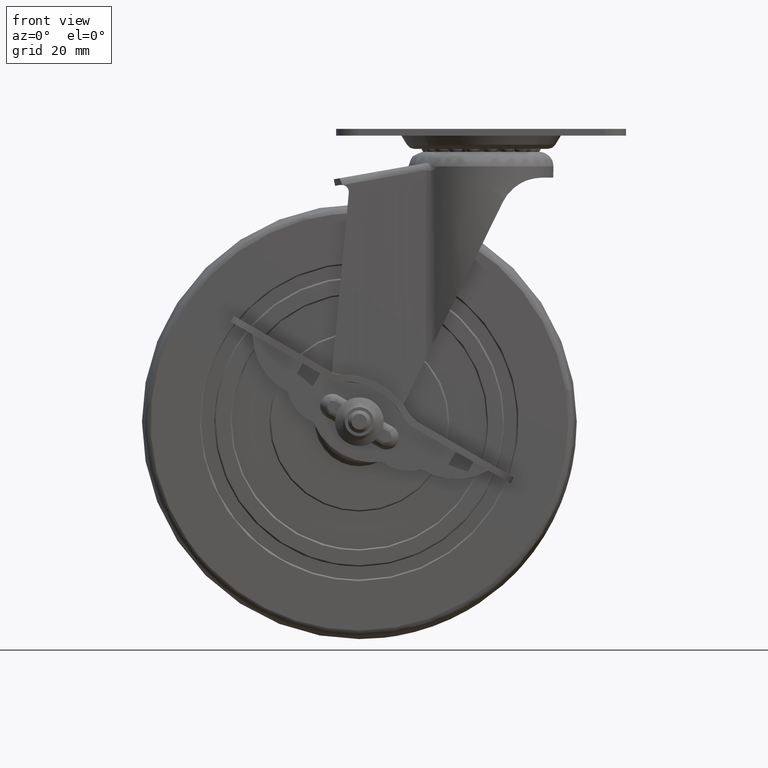
[diagram: clean part render]
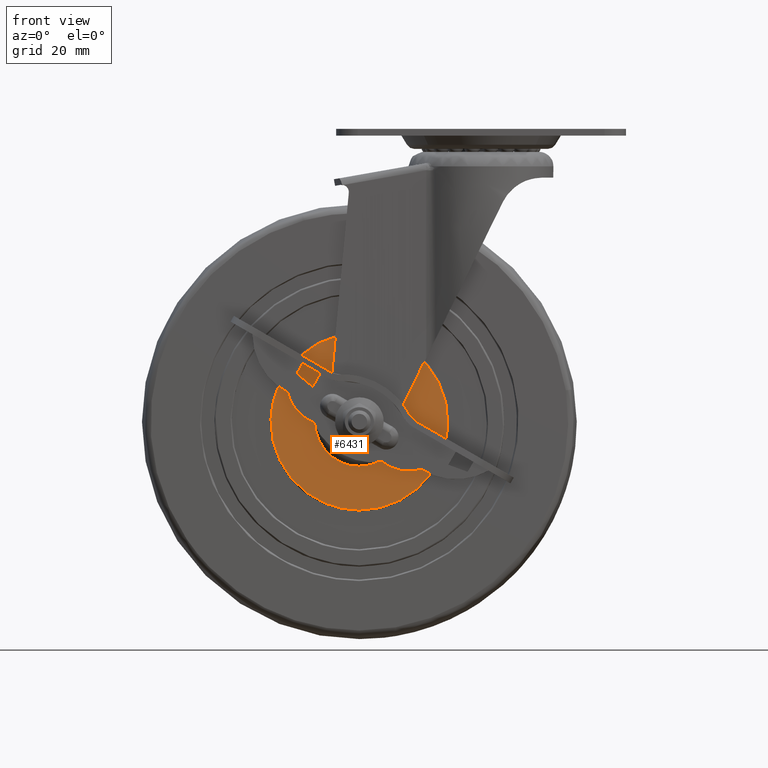
[diagram: same view with one face highlighted and labeled with its STEP entity id]
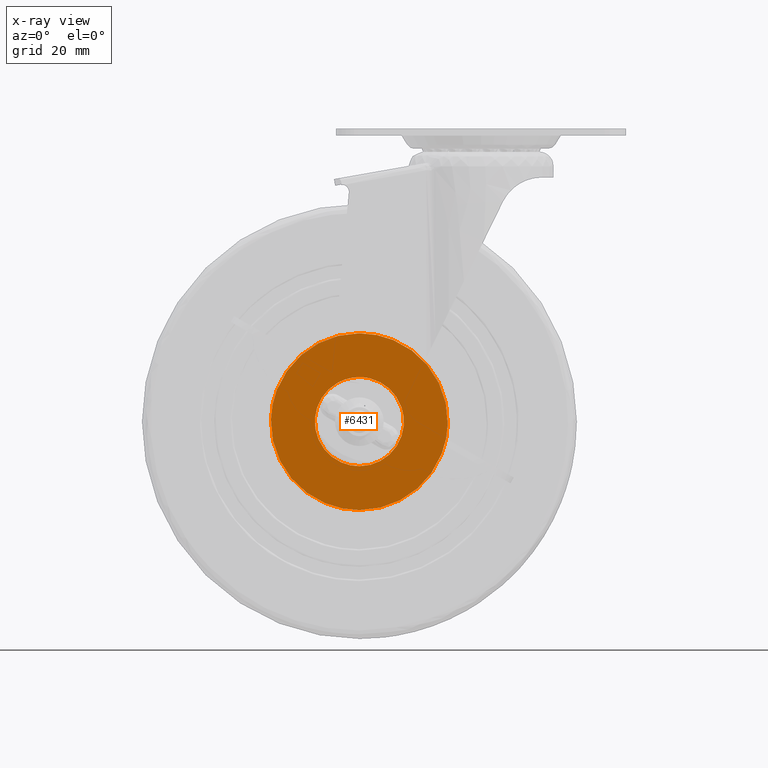
[diagram: x-ray of the same camera — body ghosted, the highlighted face saturated]
A machine part, front view. The second image highlights one B-rep face of the part: STEP entity #6431.
The next image is the same camera in x-ray: the body ghosted, the highlighted face saturated — about 0% of this face is hidden behind the body in this view.
In plain terms, the highlighted face is a freeform B-spline surface patch.
Its self-contained STEP definition (entity closure, byte-faithful):
#3205=CARTESIAN_POINT('',(30.490367958646239,-12.999999999999931,-0.766467917372949));
#3206=VERTEX_POINT('',#3205);
#3216=CARTESIAN_POINT('',(0.0,-13.0,-30.500000000000000));
#3217=VERTEX_POINT('',#3216);
#3218=CARTESIAN_POINT('',(0.0,-13.0,-30.500000000000000));
#3219=CARTESIAN_POINT('',(2.700974069380293,-13.000000000000069,-30.500932093824169));
#3220=CARTESIAN_POINT('',(7.304271002081088,-12.999999999999980,-29.884251965342500));
#3221=CARTESIAN_POINT('',(12.556499156253730,-12.999999999999989,-27.911674054310151));
#3222=CARTESIAN_POINT('',(16.329379105611519,-13.000000000000080,-25.844807416925800));
#3223=CARTESIAN_POINT('',(19.687419262090820,-12.999999999999989,-23.453290730062061));
#3224=CARTESIAN_POINT('',(23.568953134902461,-12.999999999999970,-19.668722976643920));
#3225=CARTESIAN_POINT('',(26.610719972199298,-12.999999999999980,-15.238820594239190));
#3226=CARTESIAN_POINT('',(28.886618028048328,-12.999999999999950,-10.191329568334931));
#3227=CARTESIAN_POINT('',(30.123653063696949,-12.999999999999959,-5.608101244894046));
#3228=CARTESIAN_POINT('',(30.453386226037019,-12.999999999999931,-2.239190135108877));
#3229=CARTESIAN_POINT('',(30.490367958646239,-12.999999999999931,-0.766467917372949));
#3230=B_SPLINE_CURVE_WITH_KNOTS('',3,(#3218,#3219,#3220,#3221,#3222,#3223,#3224,#3225,#3226,#3227,#3228,#3229),.UNSPECIFIED.,.F.,.U.,(4,1,1,1,1,1,1,1,1,4),(0.000000155047921,8.102644861544043,13.811377196210829,16.757798683612851,20.993345305008919,26.149470380502990,32.963135117813778,37.014473923014911,42.723231577506851,47.142811051753917),.UNSPECIFIED.);
#3231=EDGE_CURVE('',#3217,#3206,#3230,.T.);
#3233=CARTESIAN_POINT('',(-30.490367958646239,-12.999999999999931,0.766467917372956));
#3234=VERTEX_POINT('',#3233);
#3235=CARTESIAN_POINT('',(-30.490367958646239,-12.999999999999931,0.766467917372956));
#3236=CARTESIAN_POINT('',(-30.559873788000239,-12.999999999999959,-1.958095104532831));
#3237=CARTESIAN_POINT('',(-30.050692433569619,-12.999999999999950,-6.598503649020041));
#3238=CARTESIAN_POINT('',(-27.802227781046660,-13.0,-13.028145140539801));
#3239=CARTESIAN_POINT('',(-25.003114805121388,-12.999999999999901,-17.740866053243579));
#3240=CARTESIAN_POINT('',(-21.853899194054069,-13.000000000000160,-21.400691646500771));
#3241=CARTESIAN_POINT('',(-18.776388011799408,-12.999999999999920,-24.151456572403131));
#3242=CARTESIAN_POINT('',(-15.093697195526451,-13.000000000000069,-26.646048567405959));
#3243=CARTESIAN_POINT('',(-10.834221648411511,-13.000000000000011,-28.648715192152132));
#3244=CARTESIAN_POINT('',(-5.704077535852043,-13.000000000000011,-30.126878767594800));
#3245=CARTESIAN_POINT('',(-2.091542812269352,-13.000000000000011,-30.500310314382890));
#3246=CARTESIAN_POINT('',(0.0,-13.0,-30.500000000000000));
#3247=B_SPLINE_CURVE_WITH_KNOTS('',3,(#3235,#3236,#3237,#3238,#3239,#3240,#3241,#3242,#3243,#3244,#3245,#3246),.UNSPECIFIED.,.F.,.U.,(4,1,1,1,1,1,1,1,1,4),(0.000000170308965,8.175997167165299,13.880245268524209,20.345057524418898,24.527996283766949,28.330865293276840,32.704112381860803,37.837924207780013,42.401338386303038,48.675915451298607),.UNSPECIFIED.);
#3248=EDGE_CURVE('',#3234,#3217,#3247,.T.);
#3303=CARTESIAN_POINT('',(0.0,-13.0,30.500000000000000));
#3304=VERTEX_POINT('',#3303);
#3305=CARTESIAN_POINT('',(0.0,-13.0,30.500000000000000));
#3306=CARTESIAN_POINT('',(-1.841506353366600,-13.000000000000020,30.500136006879210));
#3307=CARTESIAN_POINT('',(-5.708655814979604,-12.999999999999980,30.148840862185910));
#3308=CARTESIAN_POINT('',(-11.102586455675350,-13.000000000000020,28.593497962233730));
#3309=CARTESIAN_POINT('',(-15.507704191475369,-13.000000000000011,26.383687202563198));
#3310=CARTESIAN_POINT('',(-19.497933171110510,-12.999999999999909,23.613960584008861));
#3311=CARTESIAN_POINT('',(-23.160939731269011,-13.000000000000220,20.127448211839390));
#3312=CARTESIAN_POINT('',(-26.276645732281700,-12.999999999999581,15.761373326143520));
#3313=CARTESIAN_POINT('',(-28.489115904779641,-13.000000000000149,11.225440036504530));
#3314=CARTESIAN_POINT('',(-29.998991331919761,-12.999999999999901,6.341701487611839));
#3315=CARTESIAN_POINT('',(-30.441259575746670,-12.999999999999870,2.730139494312448));
#3316=CARTESIAN_POINT('',(-30.490367958646239,-12.999999999999931,0.766467917372956));
#3317=B_SPLINE_CURVE_WITH_KNOTS('',3,(#3305,#3306,#3307,#3308,#3309,#3310,#3311,#3312,#3313,#3314,#3315,#3316),.UNSPECIFIED.,.F.,.U.,(4,1,1,1,1,1,1,1,1,4),(0.000000155054281,5.524515937017071,11.601550650015630,16.757798683615619,20.256741421107851,26.149470380504241,31.858222533395072,36.277866768507437,41.250010702911332,47.142811051753966),.UNSPECIFIED.);
#3318=EDGE_CURVE('',#3304,#3234,#3317,.T.);
#3320=CARTESIAN_POINT('',(30.490367958646239,-12.999999999999931,-0.766467917372949));
#3321=CARTESIAN_POINT('',(30.533502097335909,-12.999999999999950,0.944245070887922));
#3322=CARTESIAN_POINT('',(30.323197179083660,-12.999999999999950,4.499901066264689));
#3323=CARTESIAN_POINT('',(29.203825962263409,-12.999999999999989,9.205147210945365));
#3324=CARTESIAN_POINT('',(27.289587485045988,-12.999999999999950,13.911080464223319));
#3325=CARTESIAN_POINT('',(25.043871059550320,-13.000000000000050,17.613113385529790));
#3326=CARTESIAN_POINT('',(22.077004936973431,-12.999999999999870,21.171907563928610));
#3327=CARTESIAN_POINT('',(19.319818723483142,-13.000000000000041,23.714731704179080));
#3328=CARTESIAN_POINT('',(15.947965921626119,-13.000000000000020,26.091730917199101));
#3329=CARTESIAN_POINT('',(11.797818326624810,-13.000000000000011,28.302542208821912));
#3330=CARTESIAN_POINT('',(6.337910678226300,-13.000000000000011,30.061537760437709));
#3331=CARTESIAN_POINT('',(2.091539829492697,-13.0,30.500294894964071));
#3332=CARTESIAN_POINT('',(0.0,-13.0,30.500000000000000));
#3333=B_SPLINE_CURVE_WITH_KNOTS('',3,(#3320,#3321,#3322,#3323,#3324,#3325,#3326,#3327,#3328,#3329,#3330,#3331,#3332),.UNSPECIFIED.,.F.,.U.,(4,1,1,1,1,1,1,1,1,1,4),(0.000000170306379,5.133762616770888,10.647847543567471,14.450682744508700,20.345057524415939,23.577446848763270,28.330865293275188,31.563281298332161,35.936514487801347,42.401338386302982,48.675915451298572),.UNSPECIFIED.);
#3334=EDGE_CURVE('',#3206,#3304,#3333,.T.);
#3385=CARTESIAN_POINT('',(-7.566816686991398,-13.000000000022290,13.378794679317680));
#3386=VERTEX_POINT('',#3385);
#3387=CARTESIAN_POINT('',(0.0,-13.0,-15.370389124746101));
#3388=VERTEX_POINT('',#3387);
#3389=CARTESIAN_POINT('',(-7.566816686991398,-13.000000000022290,13.378794679317680));
#3390=CARTESIAN_POINT('',(-8.985941463367457,-13.000000000020499,12.577167394975669));
#3391=CARTESIAN_POINT('',(-10.815645588279461,-13.000000000017700,11.114655941129019));
#3392=CARTESIAN_POINT('',(-12.814484545099660,-13.000000000013801,8.597615988538870));
#3393=CARTESIAN_POINT('',(-14.250386186135090,-13.000000000010321,6.075109667425409));
#3394=CARTESIAN_POINT('',(-15.243331563409340,-13.000000000006450,2.886725238996353));
#3395=CARTESIAN_POINT('',(-15.448289984713711,-13.000000000003279,-0.226459778266201));
#3396=CARTESIAN_POINT('',(-15.162718848849201,-13.000000000000981,-2.845385691029887));
#3397=CARTESIAN_POINT('',(-14.571997237021440,-12.999999999998931,-5.089934926640901));
#3398=CARTESIAN_POINT('',(-13.526977640330051,-12.999999999997840,-7.452825672791043));
#3399=CARTESIAN_POINT('',(-12.067656516686100,-12.999999999996691,-9.652704888533817));
#3400=CARTESIAN_POINT('',(-10.020400981119639,-12.999999999995721,-11.784069250124579));
#3401=CARTESIAN_POINT('',(-7.420929144761022,-12.999999999996740,-13.603172188956700));
#3402=CARTESIAN_POINT('',(-3.995230677145130,-12.999999999996700,-15.010905571759420));
#3403=CARTESIAN_POINT('',(-1.419501268704055,-12.999999999998940,-15.370935758193930));
#3404=CARTESIAN_POINT('',(0.0,-13.0,-15.370389124746101));
#3405=B_SPLINE_CURVE_WITH_KNOTS('',3,(#3389,#3390,#3391,#3392,#3393,#3394,#3395,#3396,#3397,#3398,#3399,#3400,#3401,#3402,#3403,#3404),.UNSPECIFIED.,.F.,.U.,(4,1,1,1,1,1,1,1,1,1,1,1,1,4),(0.000000610568627,4.889264003185843,6.939637451216591,9.620865765239987,13.563891266158810,16.875983047742920,18.926431271911952,21.449686409017652,23.815562580235781,26.654517231119421,29.335747578519889,32.647877306313021,36.117789290136663,40.376105411094052),.UNSPECIFIED.);
#3406=EDGE_CURVE('',#3386,#3388,#3405,.T.);
#3408=CARTESIAN_POINT('',(14.494131477258710,-13.000000000884031,5.115565907741109));
#3409=VERTEX_POINT('',#3408);
#3410=CARTESIAN_POINT('',(0.0,-13.0,-15.370389124746101));
#3411=CARTESIAN_POINT('',(1.070361050095222,-12.999999999960110,-15.370559652306010));
#3412=CARTESIAN_POINT('',(2.981666323623184,-12.999999999902860,-15.169895947408429));
#3413=CARTESIAN_POINT('',(5.700734801044291,-12.999999999858170,-14.355578534280850));
#3414=CARTESIAN_POINT('',(8.311244026866330,-12.999999999851370,-13.053914051000559));
#3415=CARTESIAN_POINT('',(10.492312374950391,-12.999999999888811,-11.346899021842651));
#3416=CARTESIAN_POINT('',(12.429024262171970,-12.999999999967759,-9.172451667539233));
#3417=CARTESIAN_POINT('',(14.093095319095200,-13.000000000091900,-6.495675068817038));
#3418=CARTESIAN_POINT('',(15.103895311693970,-13.000000000268029,-3.417326837998317));
#3419=CARTESIAN_POINT('',(15.460360853644829,-13.000000000483171,-0.139770695124073));
#3420=CARTESIAN_POINT('',(15.250134100212410,-13.000000000676151,2.544681663025849));
#3421=CARTESIAN_POINT('',(14.748588326589831,-13.000000000825199,4.394631520930153));
#3422=CARTESIAN_POINT('',(14.494131477258710,-13.000000000884031,5.115565907741109));
#3423=B_SPLINE_CURVE_WITH_KNOTS('',3,(#3410,#3411,#3412,#3413,#3414,#3415,#3416,#3417,#3418,#3419,#3420,#3421,#3422),.UNSPECIFIED.,.F.,.U.,(4,1,1,1,1,1,1,1,1,1,4),(0.000000133040022,3.211076727905322,5.734174922396289,8.486623892220450,11.927145673793810,13.991515443737599,17.202583602374212,21.331204447556541,23.624884405802678,27.065474655426250,29.359073328741740),.UNSPECIFIED.);
#3424=EDGE_CURVE('',#3388,#3409,#3423,.T.);
#3512=CARTESIAN_POINT('',(0.0,-13.0,15.370389124746101));
#3513=VERTEX_POINT('',#3512);
#3514=CARTESIAN_POINT('',(0.0,-13.0,15.370389124746101));
#3515=CARTESIAN_POINT('',(-1.236212807733514,-12.999999999999989,15.370697816466970));
#3516=CARTESIAN_POINT('',(-3.873228848917905,-13.000000000003620,15.050389110033811));
#3517=CARTESIAN_POINT('',(-6.347561568764584,-13.000000000014531,14.069024124149211));
#3518=CARTESIAN_POINT('',(-7.566816686991398,-13.000000000022290,13.378794679317680));
#3519=B_SPLINE_CURVE_WITH_KNOTS('',3,(#3514,#3515,#3516,#3517,#3518),.UNSPECIFIED.,.F.,.U.,(4,1,4),(0.000000010691241,3.708590207627167,7.911658558362690),.UNSPECIFIED.);
#3520=EDGE_CURVE('',#3513,#3386,#3519,.T.);
#3546=CARTESIAN_POINT('',(14.494131477258710,-13.000000000884031,5.115565907741109));
#3547=CARTESIAN_POINT('',(13.986210506618900,-13.000000000759700,6.556881272084675));
#3548=CARTESIAN_POINT('',(12.815769935002070,-13.000000000570330,8.756992195733600));
#3549=CARTESIAN_POINT('',(10.639515215362460,-13.000000000359840,11.193635760750009));
#3550=CARTESIAN_POINT('',(8.475435626363099,-13.000000000211349,12.920502627386080));
#3551=CARTESIAN_POINT('',(6.208957752087509,-13.000000000105620,14.145479396885520));
#3552=CARTESIAN_POINT('',(3.302489181848365,-13.000000000022149,15.116001074938790));
#3553=CARTESIAN_POINT('',(1.281679802763276,-12.999999999999719,15.370770408586861));
#3554=CARTESIAN_POINT('',(0.0,-13.0,15.370389124746101));
#3555=B_SPLINE_CURVE_WITH_KNOTS('',3,(#3546,#3547,#3548,#3549,#3550,#3551,#3552,#3553,#3554),.UNSPECIFIED.,.F.,.U.,(4,1,1,1,1,1,4),(0.000000152618945,4.584311087213258,7.394079071439688,9.760106283520557,12.865630298773331,15.083869763180269,18.928773614023680),.UNSPECIFIED.);
#3556=EDGE_CURVE('',#3409,#3513,#3555,.T.);
#6414=CARTESIAN_POINT('',(-33.536355599522501,-13.0,33.546949881770168));
#6415=CARTESIAN_POINT('',(-33.536355599522501,-13.0,-33.546951517917662));
#6416=CARTESIAN_POINT('',(33.536357235153289,-13.0,33.546949881770168));
#6417=CARTESIAN_POINT('',(33.536357235153289,-13.0,-33.546951517917662));
#6418=B_SPLINE_SURFACE_WITH_KNOTS('',1,1,((#6414,#6416),(#6415,#6417)),.UNSPECIFIED.,.F.,.F.,.U.,(2,2),(2,2),(0.0,67.093901399687837),(0.0,67.072712834675798),.UNSPECIFIED.);
#6419=ORIENTED_EDGE('',*,*,#3231,.T.);
#6420=ORIENTED_EDGE('',*,*,#3334,.T.);
#6421=ORIENTED_EDGE('',*,*,#3318,.T.);
#6422=ORIENTED_EDGE('',*,*,#3248,.T.);
#6423=EDGE_LOOP('',(#6419,#6420,#6421,#6422));
#6424=FACE_OUTER_BOUND('',#6423,.T.);
#6425=ORIENTED_EDGE('',*,*,#3424,.F.);
#6426=ORIENTED_EDGE('',*,*,#3406,.F.);
#6427=ORIENTED_EDGE('',*,*,#3520,.F.);
#6428=ORIENTED_EDGE('',*,*,#3556,.F.);
#6429=EDGE_LOOP('',(#6425,#6426,#6427,#6428));
#6430=FACE_BOUND('',#6429,.T.);
#6431=ADVANCED_FACE('',(#6424,#6430),#6418,.T.);